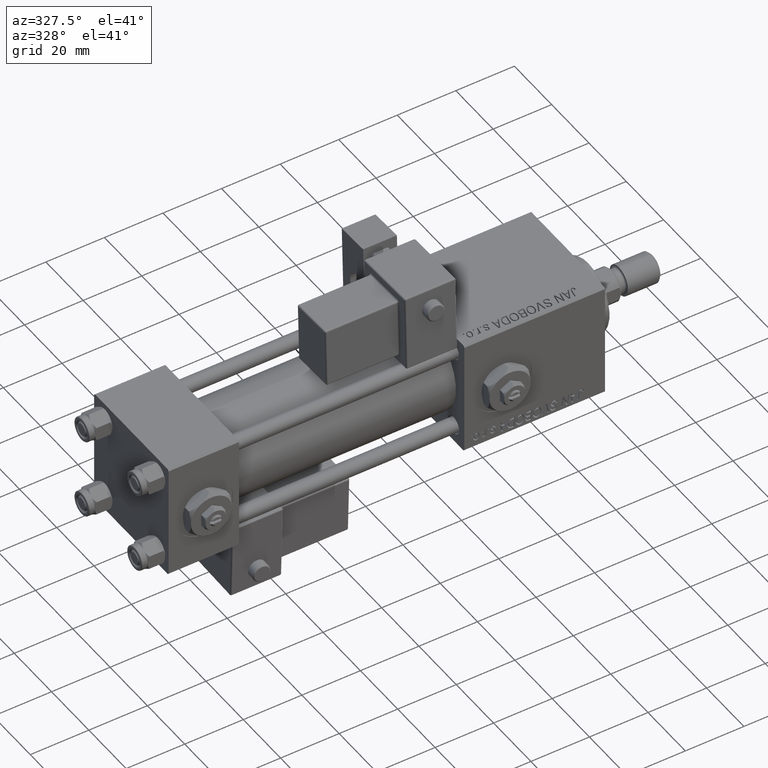
[diagram: clean part render]
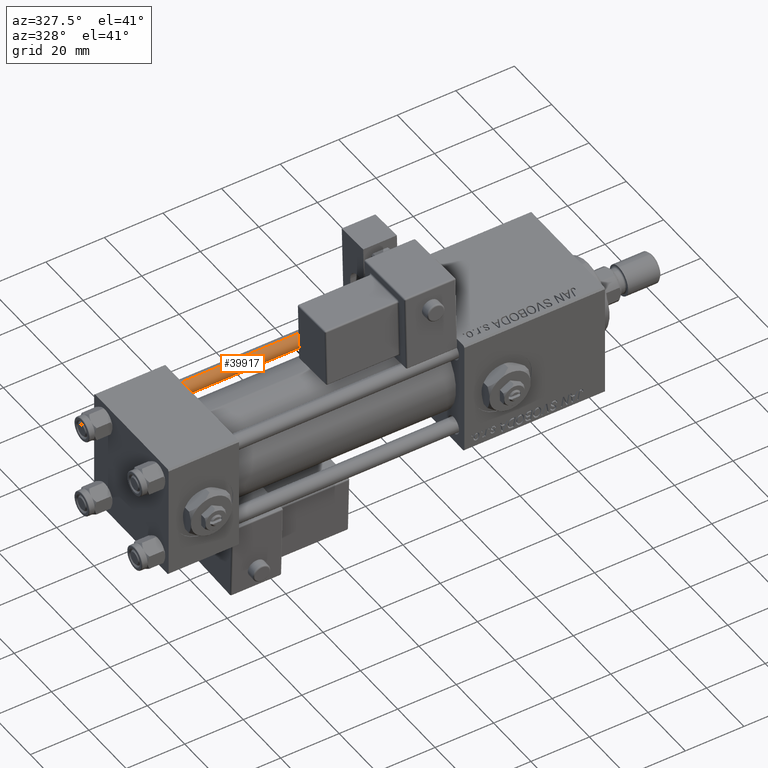
[diagram: same view with one face highlighted and labeled with its STEP entity id]
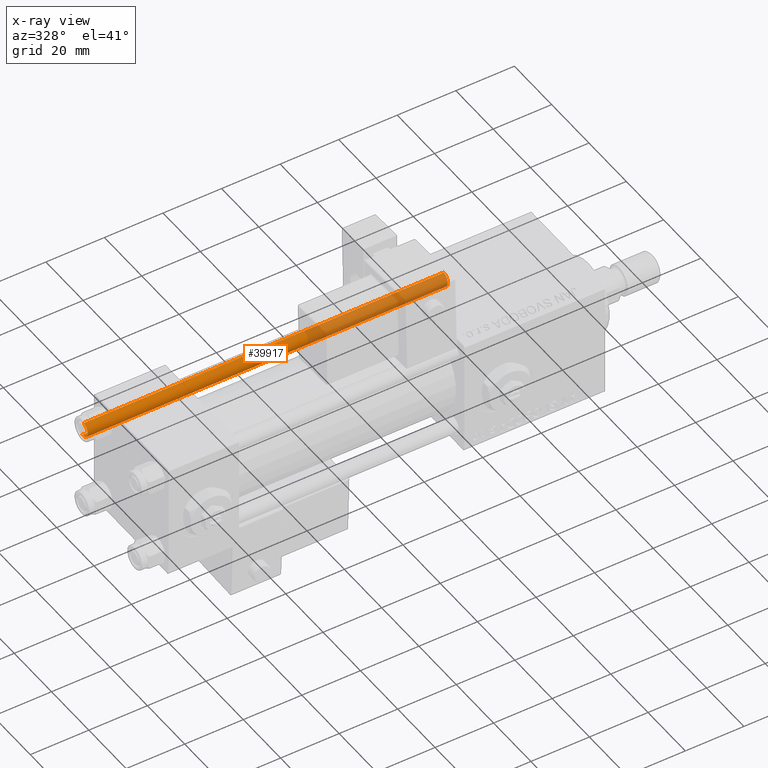
[diagram: x-ray of the same camera — body ghosted, the highlighted face saturated]
A machine part, auxiliary view. The second image highlights one B-rep face of the part: STEP entity #39917.
The next image is the same camera in x-ray: the body ghosted, the highlighted face saturated — about 39% of this face is hidden behind the body in this view.
In plain terms, the highlighted cylindrical surface (edge-blend (fillet) strip) has radius 2.5 mm, axis along (-1, 0, 0).
Its self-contained STEP definition (entity closure, byte-faithful):
#3962 = CARTESIAN_POINT ( 'NONE',  ( -2.500000000000000000, 0.000000000000000000, 123.5000000000000000 ) ) ;
#5539 = VECTOR ( 'NONE', #29786, 1000.000000000000000 ) ;
#6005 = EDGE_CURVE ( 'NONE', #32457, #11741, #8797, .T. ) ;
#6721 = EDGE_CURVE ( 'NONE', #16374, #32172, #20381, .T. ) ;
#7364 = DIRECTION ( 'NONE',  ( 1.000000000000000000, 0.000000000000000000, 0.000000000000000000 ) ) ;
#7715 = CARTESIAN_POINT ( 'NONE',  ( 0.000000000000000000, 0.000000000000000000, 124.0000000000000000 ) ) ;
#8247 = ORIENTED_EDGE ( 'NONE', *, *, #6005, .T. ) ;
#8320 = DIRECTION ( 'NONE',  ( 0.000000000000000000, 0.000000000000000000, -1.000000000000000000 ) ) ;
#8797 = CIRCLE ( 'NONE', #39892, 2.500000000000000000 ) ;
#9790 = EDGE_CURVE ( 'NONE', #32457, #32172, #50935, .T. ) ;
#11741 = VERTEX_POINT ( 'NONE', #3962 ) ;
#12439 = DIRECTION ( 'NONE',  ( -1.000000000000000000, 0.000000000000000000, 0.000000000000000000 ) ) ;
#12831 = CARTESIAN_POINT ( 'NONE',  ( 2.500000000000000000, 3.061616997868383141E-16, 124.0000000000000000 ) ) ;
#13504 = EDGE_LOOP ( 'NONE', ( #18262, #8247, #37176, #36371 ) ) ;
#15792 = FACE_OUTER_BOUND ( 'NONE', #13504, .T. ) ;
#16374 = VERTEX_POINT ( 'NONE', #50650 ) ;
#18084 = LINE ( 'NONE', #42602, #5539 ) ;
#18262 = ORIENTED_EDGE ( 'NONE', *, *, #9790, .F. ) ;
#20381 = CIRCLE ( 'NONE', #21255, 2.500000000000000000 ) ;
#21255 = AXIS2_PLACEMENT_3D ( 'NONE', #45465, #50195, #7364 ) ;
#23249 = CARTESIAN_POINT ( 'NONE',  ( 2.500000000000000000, 3.061616997868383141E-16, 123.5000000000000000 ) ) ;
#24670 = DIRECTION ( 'NONE',  ( -0.000000000000000000, -0.000000000000000000, -1.000000000000000000 ) ) ;
#25109 = EDGE_CURVE ( 'NONE', #11741, #16374, #18084, .T. ) ;
#29774 = DIRECTION ( 'NONE',  ( -0.000000000000000000, -0.000000000000000000, -1.000000000000000000 ) ) ;
#29786 = DIRECTION ( 'NONE',  ( -0.000000000000000000, -0.000000000000000000, -1.000000000000000000 ) ) ;
#31706 = VECTOR ( 'NONE', #29774, 1000.000000000000000 ) ;
#32172 = VERTEX_POINT ( 'NONE', #49565 ) ;
#32457 = VERTEX_POINT ( 'NONE', #23249 ) ;
#32491 = CYLINDRICAL_SURFACE ( 'NONE', #45007, 2.500000000000000000 ) ;
#33360 = DIRECTION ( 'NONE',  ( 1.000000000000000000, 0.000000000000000000, 0.000000000000000000 ) ) ;
#36371 = ORIENTED_EDGE ( 'NONE', *, *, #6721, .T. ) ;
#37176 = ORIENTED_EDGE ( 'NONE', *, *, #25109, .T. ) ;
#39892 = AXIS2_PLACEMENT_3D ( 'NONE', #41709, #8320, #33360 ) ;
#39917 = ADVANCED_FACE ( 'NONE', ( #15792 ), #32491, .T. ) ;
#41709 = CARTESIAN_POINT ( 'NONE',  ( 0.000000000000000000, 0.000000000000000000, 123.5000000000000000 ) ) ;
#42602 = CARTESIAN_POINT ( 'NONE',  ( -2.500000000000000000, 0.000000000000000000, 124.0000000000000000 ) ) ;
#45007 = AXIS2_PLACEMENT_3D ( 'NONE', #7715, #24670, #12439 ) ;
#45465 = CARTESIAN_POINT ( 'NONE',  ( 0.000000000000000000, 0.000000000000000000, 0.5000000000000004441 ) ) ;
#49565 = CARTESIAN_POINT ( 'NONE',  ( 2.500000000000000000, 3.061616997868383141E-16, 0.5000000000000004441 ) ) ;
#50195 = DIRECTION ( 'NONE',  ( -0.000000000000000000, -0.000000000000000000, 1.000000000000000000 ) ) ;
#50650 = CARTESIAN_POINT ( 'NONE',  ( -2.500000000000000000, 0.000000000000000000, 0.5000000000000004441 ) ) ;
#50935 = LINE ( 'NONE', #12831, #31706 ) ;